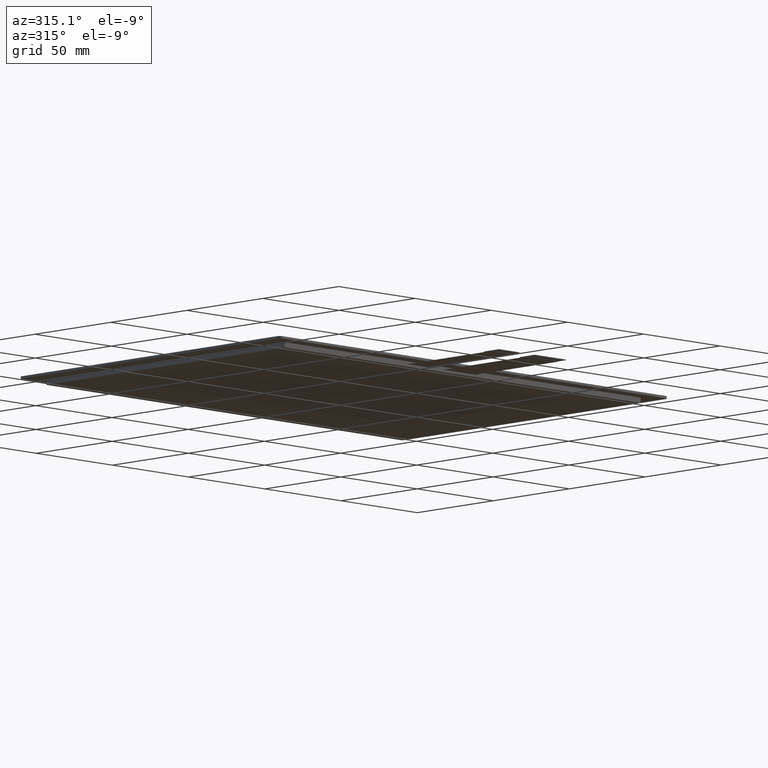
[diagram: clean part render]
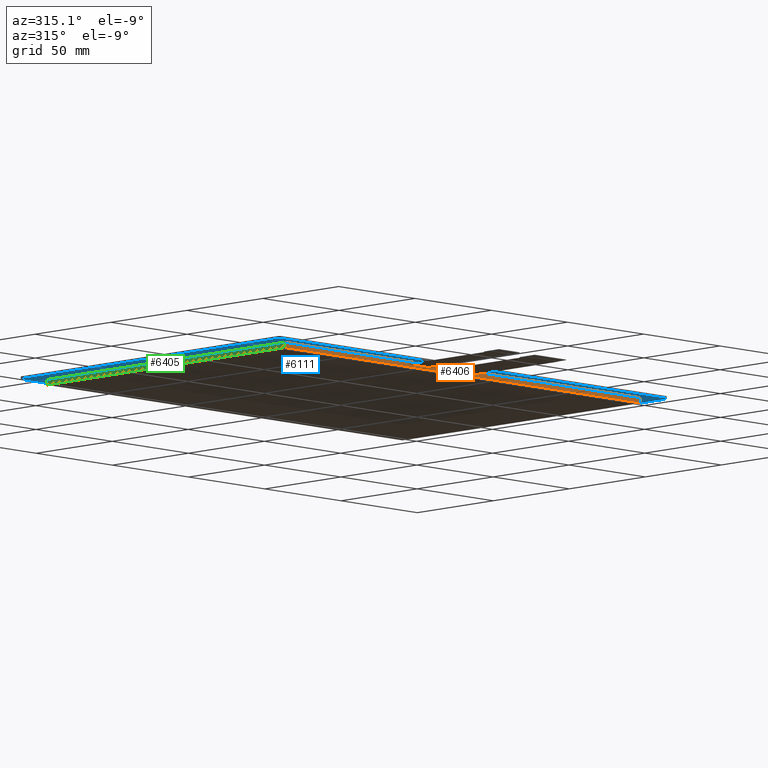
[diagram: same view with three faces highlighted in distinct colors, each labeled with its STEP entity id]
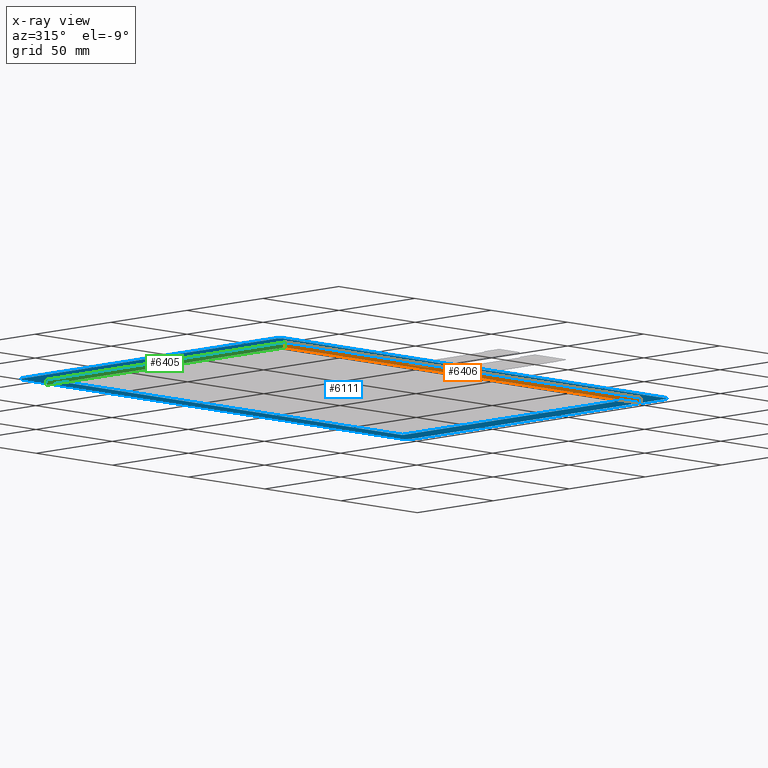
[diagram: x-ray of the same camera — body ghosted, the three highlighted faces saturated]
A machine part, auxiliary view with three faces highlighted in distinct colors.
The next image is the same camera in x-ray (body ghosted, the three faces saturated) — at least one of them is partly hidden behind the body in this view.
Their STEP definitions:

[orange] entity #6406 — the highlighted planar face has unit normal (0, -1, 0).
#52=FACE_BOUND('',#663,.T.);
#53=FACE_BOUND('',#664,.T.);
#352=FACE_OUTER_BOUND('',#662,.T.);
#662=EDGE_LOOP('',(#5734,#5735,#5736,#5737));
#663=EDGE_LOOP('',(#5738,#5739,#5740,#5741));
#664=EDGE_LOOP('',(#5742,#5743,#5744,#5745));
#690=LINE('',#8352,#1578);
#1517=LINE('',#10025,#2405);
#1522=LINE('',#10035,#2410);
#1533=LINE('',#10057,#2421);
#1535=LINE('',#10060,#2423);
#1536=LINE('',#10062,#2424);
#1538=LINE('',#10067,#2426);
#1540=LINE('',#10070,#2428);
#1541=LINE('',#10072,#2429);
#1544=LINE('',#10079,#2432);
#1545=LINE('',#10082,#2433);
#1546=LINE('',#10083,#2434);
#1578=VECTOR('',#6804,10.);
#2405=VECTOR('',#8209,10.);
#2410=VECTOR('',#8216,10.);
#2421=VECTOR('',#8237,10.);
#2423=VECTOR('',#8241,10.);
#2424=VECTOR('',#8244,10.);
#2426=VECTOR('',#8248,10.);
#2428=VECTOR('',#8252,10.);
#2429=VECTOR('',#8255,10.);
#2432=VECTOR('',#8262,10.);
#2433=VECTOR('',#8265,10.);
#2434=VECTOR('',#8266,10.);
#2487=VERTEX_POINT('',#8349);
#2488=VERTEX_POINT('',#8351);
#3044=VERTEX_POINT('',#10022);
#3045=VERTEX_POINT('',#10024);
#3048=VERTEX_POINT('',#10032);
#3049=VERTEX_POINT('',#10034);
#3054=VERTEX_POINT('',#10054);
#3055=VERTEX_POINT('',#10056);
#3056=VERTEX_POINT('',#10064);
#3057=VERTEX_POINT('',#10066);
#3059=VERTEX_POINT('',#10077);
#3060=VERTEX_POINT('',#10081);
#3094=EDGE_CURVE('',#2487,#2488,#690,.T.);
#3929=EDGE_CURVE('',#3045,#3044,#1517,.T.);
#3934=EDGE_CURVE('',#3049,#3048,#1522,.T.);
#3945=EDGE_CURVE('',#3055,#3054,#1533,.T.);
#3947=EDGE_CURVE('',#3048,#3055,#1535,.T.);
#3948=EDGE_CURVE('',#3054,#3049,#1536,.T.);
#3950=EDGE_CURVE('',#3057,#3056,#1538,.T.);
#3952=EDGE_CURVE('',#3044,#3057,#1540,.T.);
#3953=EDGE_CURVE('',#3056,#3045,#1541,.T.);
#3956=EDGE_CURVE('',#2487,#3059,#1544,.T.);
#3957=EDGE_CURVE('',#3060,#3059,#1545,.T.);
#3958=EDGE_CURVE('',#2488,#3060,#1546,.T.);
#5734=ORIENTED_EDGE('',*,*,#3094,.F.);
#5735=ORIENTED_EDGE('',*,*,#3956,.T.);
#5736=ORIENTED_EDGE('',*,*,#3957,.F.);
#5737=ORIENTED_EDGE('',*,*,#3958,.F.);
#5738=ORIENTED_EDGE('',*,*,#3945,.T.);
#5739=ORIENTED_EDGE('',*,*,#3948,.T.);
#5740=ORIENTED_EDGE('',*,*,#3934,.T.);
#5741=ORIENTED_EDGE('',*,*,#3947,.T.);
#5742=ORIENTED_EDGE('',*,*,#3950,.T.);
#5743=ORIENTED_EDGE('',*,*,#3953,.T.);
#5744=ORIENTED_EDGE('',*,*,#3929,.T.);
#5745=ORIENTED_EDGE('',*,*,#3952,.T.);
#6072=PLANE('',#6752);
#6406=ADVANCED_FACE('',(#352,#52,#53),#6072,.T.);
#6752=AXIS2_PLACEMENT_3D('',#10080,#8263,#8264);
#6804=DIRECTION('',(1.,2.28225718124229E-16,0.));
#8209=DIRECTION('',(0.,0.,1.));
#8216=DIRECTION('',(0.,0.,1.));
#8237=DIRECTION('',(0.,0.,-1.));
#8241=DIRECTION('',(1.,2.28225718124229E-16,0.));
#8244=DIRECTION('',(-1.,-2.28225718124229E-16,0.));
#8248=DIRECTION('',(0.,0.,-1.));
#8252=DIRECTION('',(1.,2.28225718124229E-16,0.));
#8255=DIRECTION('',(-1.,-2.28225718124229E-16,0.));
#8262=DIRECTION('',(0.,0.,-1.));
#8263=DIRECTION('center_axis',(2.28225718124229E-16,-1.,0.));
#8264=DIRECTION('ref_axis',(-1.,-2.28225718124229E-16,0.));
#8265=DIRECTION('',(-1.,-2.28225718124229E-16,0.));
#8266=DIRECTION('',(0.,0.,-1.));
#8349=CARTESIAN_POINT('',(-117.28,-81.2,0.));
#8351=CARTESIAN_POINT('',(116.22,-81.2,0.));
#8352=CARTESIAN_POINT('',(-117.28,-81.2,0.));
#10022=CARTESIAN_POINT('',(-36.38,-81.2,-1.25));
#10024=CARTESIAN_POINT('',(-36.38,-81.2,-1.35));
#10025=CARTESIAN_POINT('',(-36.38,-81.2,-0.625));
#10032=CARTESIAN_POINT('',(-12.88,-81.2,-1.25));
#10034=CARTESIAN_POINT('',(-12.88,-81.2,-1.35));
#10035=CARTESIAN_POINT('',(-12.88,-81.2,-0.625));
#10054=CARTESIAN_POINT('',(7.62000000000002,-81.2,-1.35));
#10056=CARTESIAN_POINT('',(7.62000000000002,-81.2,-1.25));
#10057=CARTESIAN_POINT('',(7.62000000000002,-81.2,-0.625));
#10060=CARTESIAN_POINT('',(56.795,-81.2,-1.25));
#10062=CARTESIAN_POINT('',(56.795,-81.2,-1.35));
#10064=CARTESIAN_POINT('',(-22.88,-81.2,-1.35));
#10066=CARTESIAN_POINT('',(-22.88,-81.2,-1.25));
#10067=CARTESIAN_POINT('',(-22.88,-81.2,-0.625));
#10070=CARTESIAN_POINT('',(43.295,-81.2,-1.25));
#10072=CARTESIAN_POINT('',(43.295,-81.2,-1.35));
#10077=CARTESIAN_POINT('',(-117.28,-81.2,-2.5));
#10079=CARTESIAN_POINT('',(-117.28,-81.2,0.));
#10080=CARTESIAN_POINT('Origin',(116.22,-81.2,0.));
#10081=CARTESIAN_POINT('',(116.22,-81.2,-2.5));
#10082=CARTESIAN_POINT('',(-117.28,-81.2,-2.5));
#10083=CARTESIAN_POINT('',(116.22,-81.2,0.));

[blue] entity #6111 — the highlighted planar face has unit normal (0, 0, 1).
#51=FACE_BOUND('',#367,.T.);
#57=FACE_OUTER_BOUND('',#366,.T.);
#366=EDGE_LOOP('',(#3994,#3995,#3996,#3997,#3998,#3999,#4000,#4001));
#367=EDGE_LOOP('',(#4002,#4003,#4004,#4005));
#684=LINE('',#8334,#1572);
#686=LINE('',#8338,#1574);
#687=LINE('',#8342,#1575);
#688=LINE('',#8346,#1576);
#689=LINE('',#8350,#1577);
#690=LINE('',#8352,#1578);
#691=LINE('',#8354,#1579);
#692=LINE('',#8355,#1580);
#1572=VECTOR('',#6790,10.);
#1574=VECTOR('',#6794,10.);
#1575=VECTOR('',#6797,10.);
#1576=VECTOR('',#6800,10.);
#1577=VECTOR('',#6803,10.);
#1578=VECTOR('',#6804,10.);
#1579=VECTOR('',#6805,10.);
#1580=VECTOR('',#6806,10.);
#2454=CIRCLE('',#6444,2.);
#2455=CIRCLE('',#6447,2.);
#2456=CIRCLE('',#6448,2.);
#2457=CIRCLE('',#6449,2.);
#2478=VERTEX_POINT('',#8327);
#2479=VERTEX_POINT('',#8329);
#2480=VERTEX_POINT('',#8333);
#2481=VERTEX_POINT('',#8337);
#2482=VERTEX_POINT('',#8339);
#2483=VERTEX_POINT('',#8341);
#2484=VERTEX_POINT('',#8343);
#2485=VERTEX_POINT('',#8345);
#2486=VERTEX_POINT('',#8348);
#2487=VERTEX_POINT('',#8349);
#2488=VERTEX_POINT('',#8351);
#2489=VERTEX_POINT('',#8353);
#3083=EDGE_CURVE('',#2478,#2479,#2454,.T.);
#3085=EDGE_CURVE('',#2479,#2480,#684,.T.);
#3087=EDGE_CURVE('',#2481,#2478,#686,.T.);
#3088=EDGE_CURVE('',#2482,#2481,#2455,.T.);
#3089=EDGE_CURVE('',#2483,#2482,#687,.T.);
#3090=EDGE_CURVE('',#2484,#2483,#2456,.T.);
#3091=EDGE_CURVE('',#2485,#2484,#688,.T.);
#3092=EDGE_CURVE('',#2480,#2485,#2457,.T.);
#3093=EDGE_CURVE('',#2486,#2487,#689,.T.);
#3094=EDGE_CURVE('',#2487,#2488,#690,.T.);
#3095=EDGE_CURVE('',#2488,#2489,#691,.T.);
#3096=EDGE_CURVE('',#2489,#2486,#692,.T.);
#3994=ORIENTED_EDGE('',*,*,#3083,.F.);
#3995=ORIENTED_EDGE('',*,*,#3087,.F.);
#3996=ORIENTED_EDGE('',*,*,#3088,.F.);
#3997=ORIENTED_EDGE('',*,*,#3089,.F.);
#3998=ORIENTED_EDGE('',*,*,#3090,.F.);
#3999=ORIENTED_EDGE('',*,*,#3091,.F.);
#4000=ORIENTED_EDGE('',*,*,#3092,.F.);
#4001=ORIENTED_EDGE('',*,*,#3085,.F.);
#4002=ORIENTED_EDGE('',*,*,#3093,.T.);
#4003=ORIENTED_EDGE('',*,*,#3094,.T.);
#4004=ORIENTED_EDGE('',*,*,#3095,.T.);
#4005=ORIENTED_EDGE('',*,*,#3096,.T.);
#5784=PLANE('',#6446);
#6111=ADVANCED_FACE('',(#57,#51),#5784,.F.);
#6444=AXIS2_PLACEMENT_3D('',#8330,#6785,#6786);
#6446=AXIS2_PLACEMENT_3D('',#8336,#6792,#6793);
#6447=AXIS2_PLACEMENT_3D('',#8340,#6795,#6796);
#6448=AXIS2_PLACEMENT_3D('',#8344,#6798,#6799);
#6449=AXIS2_PLACEMENT_3D('',#8347,#6801,#6802);
#6785=DIRECTION('center_axis',(0.,0.,1.));
#6786=DIRECTION('ref_axis',(0.707106781186548,0.707106781186548,0.));
#6790=DIRECTION('',(-1.,0.,0.));
#6792=DIRECTION('center_axis',(0.,0.,1.));
#6793=DIRECTION('ref_axis',(1.,0.,0.));
#6794=DIRECTION('',(-1.03457008701238E-16,1.,0.));
#6795=DIRECTION('center_axis',(0.,0.,1.));
#6796=DIRECTION('ref_axis',(0.707106781186554,-0.707106781186541,0.));
#6797=DIRECTION('',(1.,2.089831575765E-16,0.));
#6798=DIRECTION('center_axis',(0.,0.,1.));
#6799=DIRECTION('ref_axis',(-0.707106781186548,-0.707106781186548,0.));
#6800=DIRECTION('',(2.06914017402475E-16,-1.,0.));
#6801=DIRECTION('center_axis',(0.,0.,1.));
#6802=DIRECTION('ref_axis',(-0.707106781186548,0.707106781186548,0.));
#6803=DIRECTION('',(2.26576127474522E-16,-1.,0.));
#6804=DIRECTION('',(1.,2.28225718124229E-16,0.));
#6805=DIRECTION('',(-2.26576127474522E-16,1.,0.));
#6806=DIRECTION('',(-1.,0.,0.));
#8327=CARTESIAN_POINT('',(127.52,81.5,0.));
#8329=CARTESIAN_POINT('',(125.52,83.5,0.));
#8330=CARTESIAN_POINT('Origin',(125.52,81.5,0.));
#8333=CARTESIAN_POINT('',(-125.48,83.5,0.));
#8334=CARTESIAN_POINT('',(127.52,83.5,0.));
#8336=CARTESIAN_POINT('Origin',(0.0199999999999712,-2.34999999999999,0.));
#8337=CARTESIAN_POINT('',(127.52,-86.2,0.));
#8338=CARTESIAN_POINT('',(127.52,-88.1999999999999,0.));
#8339=CARTESIAN_POINT('',(125.52,-88.1999999999999,0.));
#8340=CARTESIAN_POINT('Origin',(125.52,-86.2,0.));
#8341=CARTESIAN_POINT('',(-125.48,-88.2,0.));
#8342=CARTESIAN_POINT('',(-127.48,-88.2,0.));
#8343=CARTESIAN_POINT('',(-127.48,-86.2,0.));
#8344=CARTESIAN_POINT('Origin',(-125.48,-86.2,0.));
#8345=CARTESIAN_POINT('',(-127.48,81.5,0.));
#8346=CARTESIAN_POINT('',(-127.48,83.5,0.));
#8347=CARTESIAN_POINT('Origin',(-125.48,81.5,0.));
#8348=CARTESIAN_POINT('',(-117.28,75.6000000000001,0.));
#8349=CARTESIAN_POINT('',(-117.28,-81.2,0.));
#8350=CARTESIAN_POINT('',(-117.28,75.6000000000001,0.));
#8351=CARTESIAN_POINT('',(116.22,-81.2,0.));
#8352=CARTESIAN_POINT('',(-117.28,-81.2,0.));
#8353=CARTESIAN_POINT('',(116.22,75.6000000000001,0.));
#8354=CARTESIAN_POINT('',(116.22,-81.2,0.));
#8355=CARTESIAN_POINT('',(116.22,75.6000000000001,0.));

[green] entity #6405 — the highlighted planar face has unit normal (-1, -0, 0).
#351=FACE_OUTER_BOUND('',#661,.T.);
#661=EDGE_LOOP('',(#5730,#5731,#5732,#5733));
#689=LINE('',#8350,#1577);
#1542=LINE('',#10076,#2430);
#1543=LINE('',#10078,#2431);
#1544=LINE('',#10079,#2432);
#1577=VECTOR('',#6803,10.);
#2430=VECTOR('',#8260,10.);
#2431=VECTOR('',#8261,10.);
#2432=VECTOR('',#8262,10.);
#2486=VERTEX_POINT('',#8348);
#2487=VERTEX_POINT('',#8349);
#3058=VERTEX_POINT('',#10075);
#3059=VERTEX_POINT('',#10077);
#3093=EDGE_CURVE('',#2486,#2487,#689,.T.);
#3954=EDGE_CURVE('',#2486,#3058,#1542,.T.);
#3955=EDGE_CURVE('',#3059,#3058,#1543,.T.);
#3956=EDGE_CURVE('',#2487,#3059,#1544,.T.);
#5730=ORIENTED_EDGE('',*,*,#3093,.F.);
#5731=ORIENTED_EDGE('',*,*,#3954,.T.);
#5732=ORIENTED_EDGE('',*,*,#3955,.F.);
#5733=ORIENTED_EDGE('',*,*,#3956,.F.);
#6071=PLANE('',#6751);
#6405=ADVANCED_FACE('',(#351),#6071,.T.);
#6751=AXIS2_PLACEMENT_3D('',#10074,#8258,#8259);
#6803=DIRECTION('',(2.26576127474522E-16,-1.,0.));
#8258=DIRECTION('center_axis',(-1.,-2.26576127474522E-16,0.));
#8259=DIRECTION('ref_axis',(-2.26576127474522E-16,1.,0.));
#8260=DIRECTION('',(0.,0.,-1.));
#8261=DIRECTION('',(-2.26576127474522E-16,1.,0.));
#8262=DIRECTION('',(0.,0.,-1.));
#8348=CARTESIAN_POINT('',(-117.28,75.6000000000001,0.));
#8349=CARTESIAN_POINT('',(-117.28,-81.2,0.));
#8350=CARTESIAN_POINT('',(-117.28,75.6000000000001,0.));
#10074=CARTESIAN_POINT('Origin',(-117.28,-81.2,0.));
#10075=CARTESIAN_POINT('',(-117.28,75.6000000000001,-2.5));
#10076=CARTESIAN_POINT('',(-117.28,75.6000000000001,0.));
#10077=CARTESIAN_POINT('',(-117.28,-81.2,-2.5));
#10078=CARTESIAN_POINT('',(-117.28,75.6000000000001,-2.5));
#10079=CARTESIAN_POINT('',(-117.28,-81.2,0.));